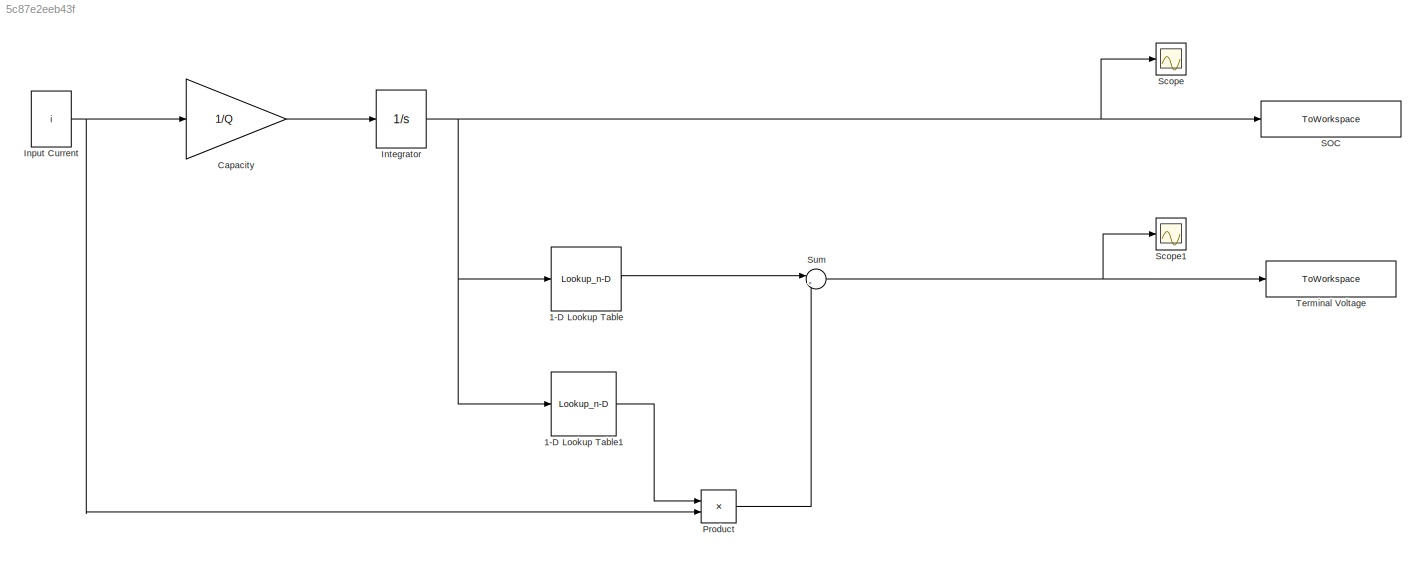
MODEL slx_5c87e2eeb43f
KIND model
BLOCK [Lookup_n-D] 1-D Lookup Table
  BreakpointsForDimension1 = SOC
  InternalRulePriority = Speed
  NumberOfTableDimensions = 1
  Ports = [1, 1]
  RndMeth = Simplest
  Table = OCV
BLOCK [Lookup_n-D] 1-D Lookup Table1
  BreakpointsForDimension1 = SOC
  InternalRulePriority = Speed
  NumberOfTableDimensions = 1
  Ports = [1, 1]
  RndMeth = Simplest
  Table = R_Charging
BLOCK [Gain] Capacity
  Gain = 1/Q
  OutDataTypeStr = Inherit: Inherit via internal rule
  ParamDataTypeStr = Inherit: Inherit via internal rule
  SaturateOnIntegerOverflow = off
BLOCK [Constant] Input Current
  Value = i
BLOCK [Integrator] Integrator
  Ports = [1, 1]
BLOCK [Product] Product
  InputSameDT = off
  OutDataTypeStr = Inherit: Inherit via internal rule
  Ports = [2, 1]
  SaturateOnIntegerOverflow = off
BLOCK [ToWorkspace] SOC
  MaxDataPoints = inf
  Ports = [1]
  SampleTime = -1
  SaveFormat = Structure
  VariableName = State_Of_Charge
BLOCK [Scope] Scope
  DataFormat = StructureWithTime
  Floating = off
  NumInputPorts = 1
  Ports = [1]
  SampleTime = 0
  ShowLegends = off
BLOCK [Scope] Scope1
  DataFormat = StructureWithTime
  Floating = off
  NumInputPorts = 1
  Ports = [1]
  SampleTime = 0
  SaveName = ScopeData1
  ShowLegends = off
BLOCK [Sum] Sum
  IconShape = round
  InputSameDT = off
  Inputs = |++
  OutDataTypeStr = Inherit: Inherit via internal rule
  Ports = [2, 1]
  SaturateOnIntegerOverflow = off
BLOCK [ToWorkspace] Terminal Voltage
  MaxDataPoints = inf
  Ports = [1]
  SampleTime = -1
  SaveFormat = Structure
  VariableName = Terminal_Voltage
LINE 1-D Lookup Table1:1 -> Product:1
LINE 1-D Lookup Table:1 -> Sum:1
LINE Capacity:1 -> Integrator:1
NET Input Current:1 -> Capacity:1, Product:2
NET Integrator:1 -> 1-D Lookup Table1:1, 1-D Lookup Table:1, SOC:1, Scope:1
LINE Product:1 -> Sum:2
NET Sum:1 -> Scope1:1, Terminal Voltage:1
note: NET lines group one-source signal fan-out (src -> all destinations, sorted); 1:1 wires keep LINE
